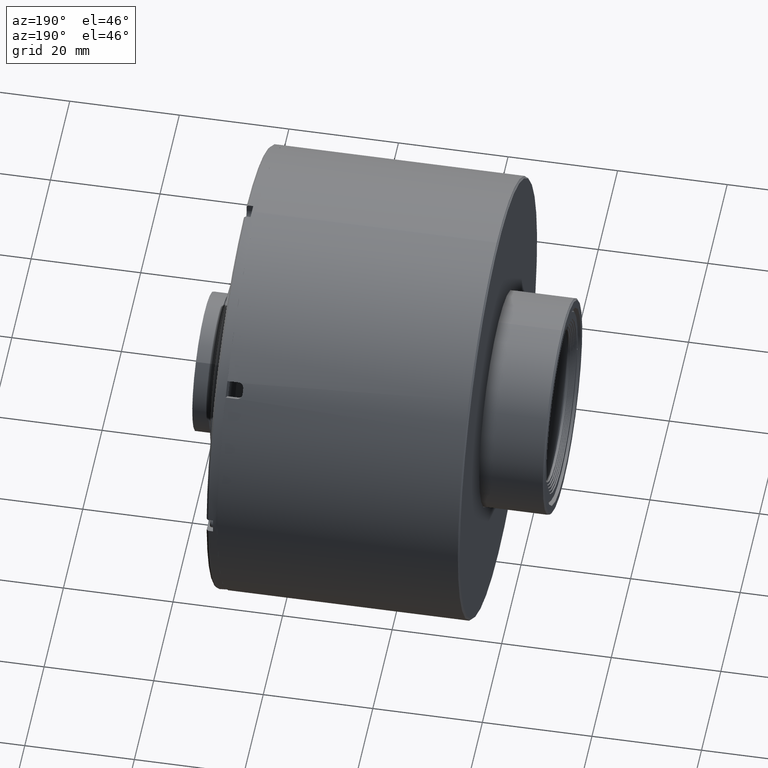
[diagram: clean part render]
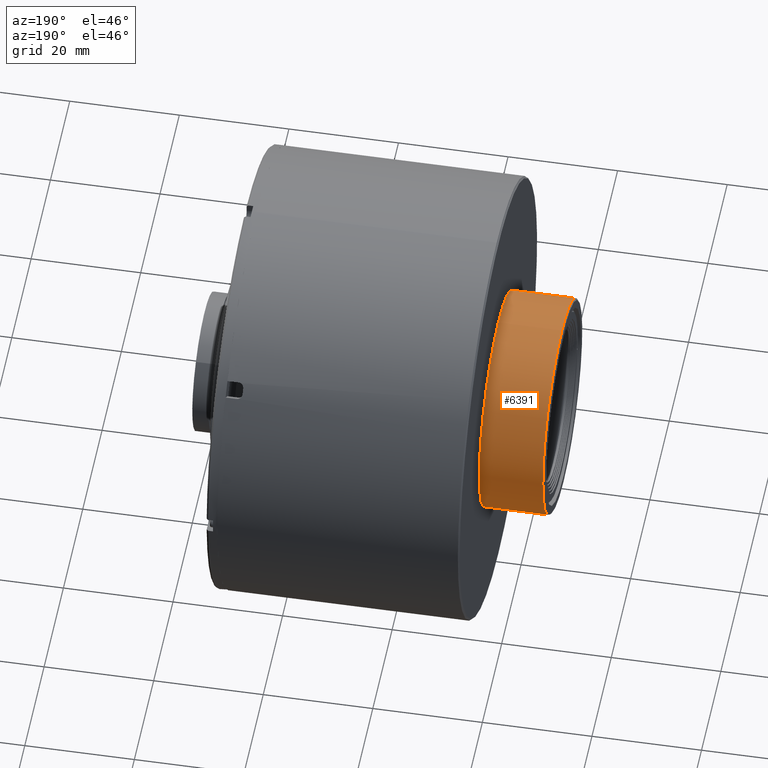
[diagram: same view with one face highlighted and labeled with its STEP entity id]
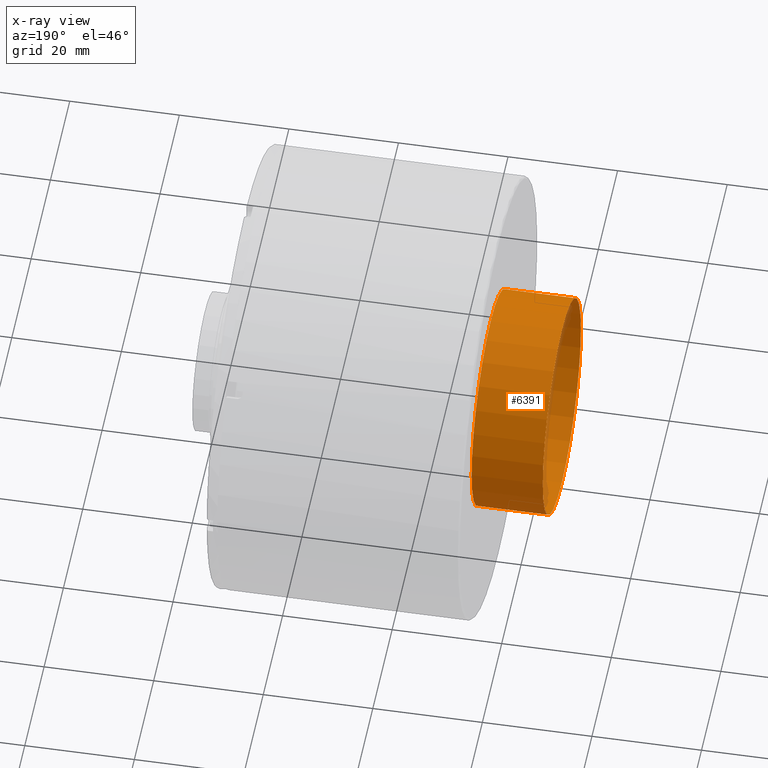
[diagram: x-ray of the same camera — body ghosted, the highlighted face saturated]
A machine part, auxiliary view. The second image highlights one B-rep face of the part: STEP entity #6391.
The next image is the same camera in x-ray: the body ghosted, the highlighted face saturated — about 3% of this face is hidden behind the body in this view.
In plain terms, the highlighted cylindrical surface (bore or boss wall) has radius 19.7 mm, axis along (-1, -0, -0).
Its self-contained STEP definition (entity closure, byte-faithful):
#169 = DIRECTION ( 'NONE',  ( -1.000000000000000000, -0.000000000000000000, -0.000000000000000000 ) ) ;
#549 = AXIS2_PLACEMENT_3D ( 'NONE', #39260, #47006, #32189 ) ;
#3803 = DIRECTION ( 'NONE',  ( 0.000000000000000000, 0.000000000000000000, -1.000000000000000000 ) ) ;
#4072 = CYLINDRICAL_SURFACE ( 'NONE', #17873, 19.69999999999999929 ) ;
#4506 = EDGE_LOOP ( 'NONE', ( #42186 ) ) ;
#6391 = ADVANCED_FACE ( 'NONE', ( #6737, #18180 ), #4072, .T. ) ;
#6737 = FACE_OUTER_BOUND ( 'NONE', #25298, .T. ) ;
#9060 = CIRCLE ( 'NONE', #23038, 19.69999999999999929 ) ;
#11283 = ORIENTED_EDGE ( 'NONE', *, *, #29708, .F. ) ;
#12034 = CARTESIAN_POINT ( 'NONE',  ( 172.5399642838975467, -4.341325682588041960E-162, 0.000000000000000000 ) ) ;
#12201 = CARTESIAN_POINT ( 'NONE',  ( 185.5399642838986267, -4.341325682588041960E-162, 19.69999999999999929 ) ) ;
#15237 = DIRECTION ( 'NONE',  ( -1.000000000000000000, -0.000000000000000000, -0.000000000000000000 ) ) ;
#17873 = AXIS2_PLACEMENT_3D ( 'NONE', #41487, #15237, #45363 ) ;
#18180 = FACE_OUTER_BOUND ( 'NONE', #4506, .T. ) ;
#18808 = VERTEX_POINT ( 'NONE', #12201 ) ;
#23038 = AXIS2_PLACEMENT_3D ( 'NONE', #12034, #169, #3803 ) ;
#25298 = EDGE_LOOP ( 'NONE', ( #11283 ) ) ;
#26807 = VERTEX_POINT ( 'NONE', #44784 ) ;
#29708 = EDGE_CURVE ( 'NONE', #26807, #26807, #9060, .T. ) ;
#29819 = EDGE_CURVE ( 'NONE', #18808, #18808, #33122, .T. ) ;
#32189 = DIRECTION ( 'NONE',  ( 0.000000000000000000, 0.000000000000000000, 1.000000000000000000 ) ) ;
#33122 = CIRCLE ( 'NONE', #549, 19.69999999999999929 ) ;
#39260 = CARTESIAN_POINT ( 'NONE',  ( 185.5399642838986267, -4.341325682588041960E-162, 0.000000000000000000 ) ) ;
#41487 = CARTESIAN_POINT ( 'NONE',  ( 162.5817059250350667, -4.341325682588041960E-162, 0.000000000000000000 ) ) ;
#42186 = ORIENTED_EDGE ( 'NONE', *, *, #29819, .T. ) ;
#44784 = CARTESIAN_POINT ( 'NONE',  ( 172.5399642838975467, -4.341325682588041960E-162, -19.69999999999999929 ) ) ;
#45363 = DIRECTION ( 'NONE',  ( 0.000000000000000000, 0.000000000000000000, 1.000000000000000000 ) ) ;
#47006 = DIRECTION ( 'NONE',  ( -1.000000000000000000, -0.000000000000000000, -0.000000000000000000 ) ) ;